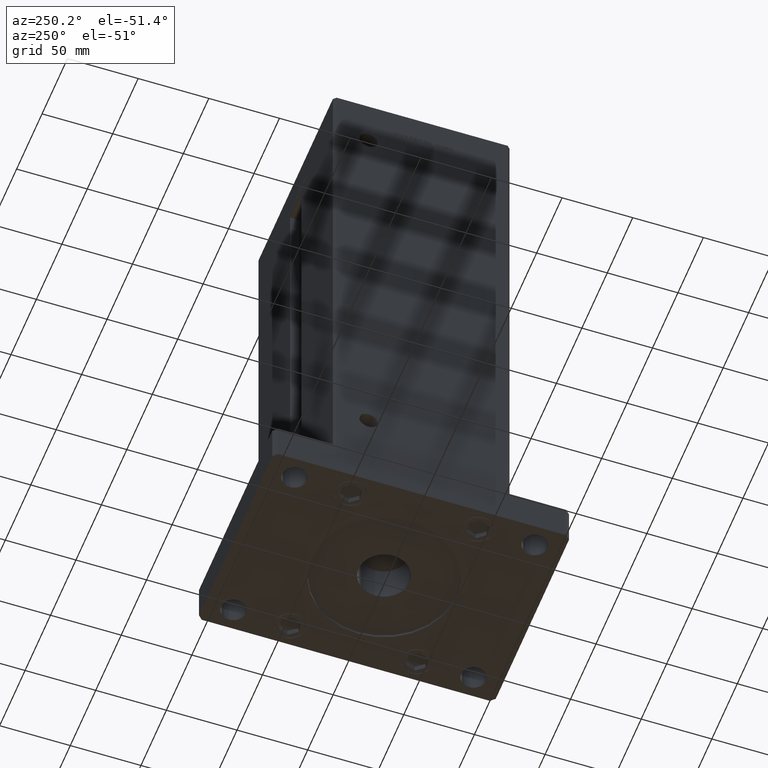
[diagram: clean part render]
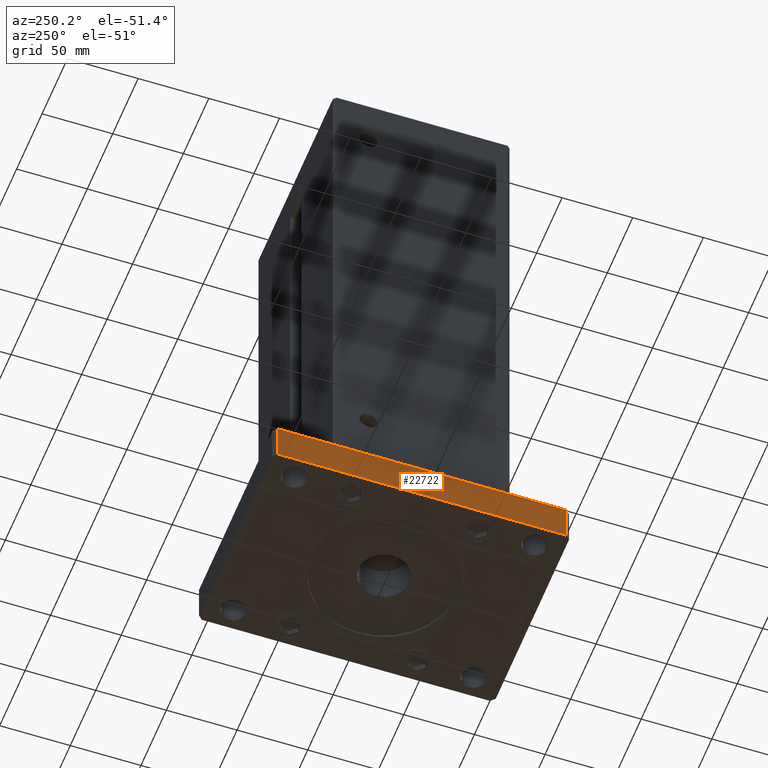
[diagram: same view with one face highlighted and labeled with its STEP entity id]
A machine part, auxiliary view. The second image highlights one B-rep face of the part: STEP entity #22722.
In plain terms, the highlighted planar face has unit normal (1, 0, 0).
Its self-contained STEP definition (entity closure, byte-faithful):
#2050 = VERTEX_POINT ( 'NONE', #18469 ) ;
#3171 = CARTESIAN_POINT ( 'NONE',  ( -75.00000000000001421, 102.0000000000000000, 27.00000000000000000 ) ) ;
#3204 = LINE ( 'NONE', #11383, #32063 ) ;
#3306 = ORIENTED_EDGE ( 'NONE', *, *, #51366, .T. ) ;
#3895 = CARTESIAN_POINT ( 'NONE',  ( -75.00000000000001421, 102.0000000000000000, 0.000000000000000000 ) ) ;
#4231 = CARTESIAN_POINT ( 'NONE',  ( -74.99999999999998579, -102.0000000000000142, 27.00000000000000000 ) ) ;
#6641 = VERTEX_POINT ( 'NONE', #30693 ) ;
#10548 = CARTESIAN_POINT ( 'NONE',  ( -75.00000000000001421, 102.0000000000000000, 27.00000000000000000 ) ) ;
#11383 = CARTESIAN_POINT ( 'NONE',  ( -75.00000000000001421, 102.0000000000000000, 27.00000000000000000 ) ) ;
#14601 = DIRECTION ( 'NONE',  ( 1.000000000000000000, 1.360567432138672081E-16, -0.000000000000000000 ) ) ;
#17536 = ORIENTED_EDGE ( 'NONE', *, *, #20403, .T. ) ;
#18469 = CARTESIAN_POINT ( 'NONE',  ( -74.99999999999998579, -102.0000000000000142, 0.000000000000000000 ) ) ;
#19090 = VECTOR ( 'NONE', #43948, 1000.000000000000000 ) ;
#19855 = EDGE_CURVE ( 'NONE', #41202, #2050, #35249, .T. ) ;
#20403 = EDGE_CURVE ( 'NONE', #27975, #6641, #52287, .T. ) ;
#22722 = ADVANCED_FACE ( 'NONE', ( #35244 ), #52084, .F. ) ;
#25862 = ORIENTED_EDGE ( 'NONE', *, *, #19855, .F. ) ;
#26575 = CARTESIAN_POINT ( 'NONE',  ( -74.99999999999998579, -102.0000000000000142, 27.00000000000000000 ) ) ;
#26781 = DIRECTION ( 'NONE',  ( -0.000000000000000000, -0.000000000000000000, -1.000000000000000000 ) ) ;
#27975 = VERTEX_POINT ( 'NONE', #10548 ) ;
#29184 = DIRECTION ( 'NONE',  ( 1.360567432138672081E-16, -1.000000000000000000, 0.000000000000000000 ) ) ;
#30693 = CARTESIAN_POINT ( 'NONE',  ( -75.00000000000001421, 102.0000000000000000, 0.000000000000000000 ) ) ;
#32063 = VECTOR ( 'NONE', #36369, 1000.000000000000000 ) ;
#35244 = FACE_OUTER_BOUND ( 'NONE', #50424, .T. ) ;
#35249 = LINE ( 'NONE', #26575, #19090 ) ;
#36369 = DIRECTION ( 'NONE',  ( 1.360567432138672081E-16, -1.000000000000000000, 0.000000000000000000 ) ) ;
#37397 = AXIS2_PLACEMENT_3D ( 'NONE', #3171, #14601, #43943 ) ;
#38617 = EDGE_CURVE ( 'NONE', #27975, #41202, #3204, .T. ) ;
#41202 = VERTEX_POINT ( 'NONE', #4231 ) ;
#41408 = LINE ( 'NONE', #3895, #44497 ) ;
#41697 = VECTOR ( 'NONE', #26781, 1000.000000000000000 ) ;
#41913 = ORIENTED_EDGE ( 'NONE', *, *, #38617, .F. ) ;
#43943 = DIRECTION ( 'NONE',  ( -1.360567432138672081E-16, 1.000000000000000000, 0.000000000000000000 ) ) ;
#43948 = DIRECTION ( 'NONE',  ( -0.000000000000000000, -0.000000000000000000, -1.000000000000000000 ) ) ;
#44497 = VECTOR ( 'NONE', #29184, 1000.000000000000000 ) ;
#47681 = CARTESIAN_POINT ( 'NONE',  ( -75.00000000000001421, 102.0000000000000000, 27.00000000000000000 ) ) ;
#50424 = EDGE_LOOP ( 'NONE', ( #3306, #25862, #41913, #17536 ) ) ;
#51366 = EDGE_CURVE ( 'NONE', #6641, #2050, #41408, .T. ) ;
#52084 = PLANE ( 'NONE',  #37397 ) ;
#52287 = LINE ( 'NONE', #47681, #41697 ) ;